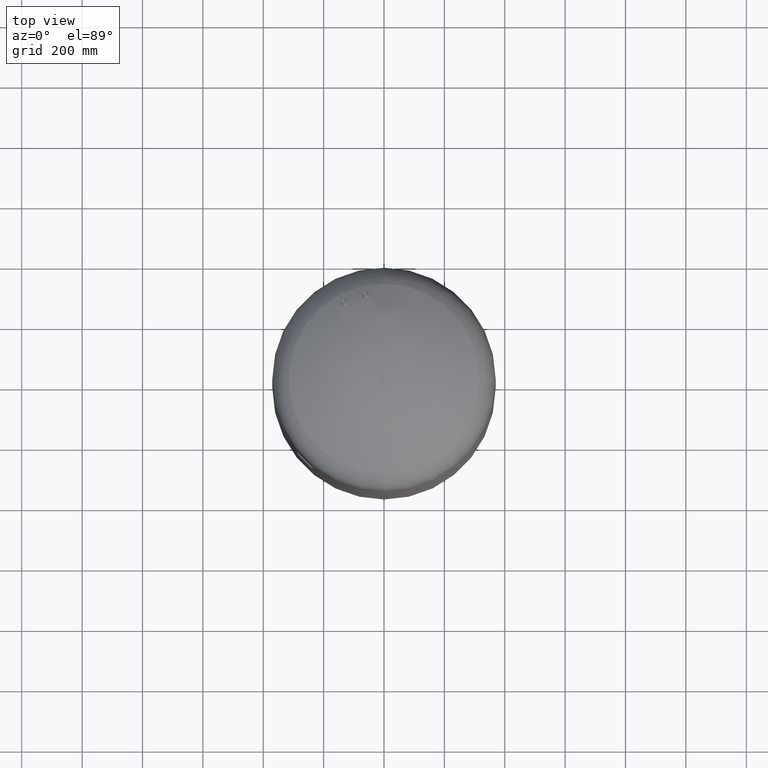
[diagram: clean part render]
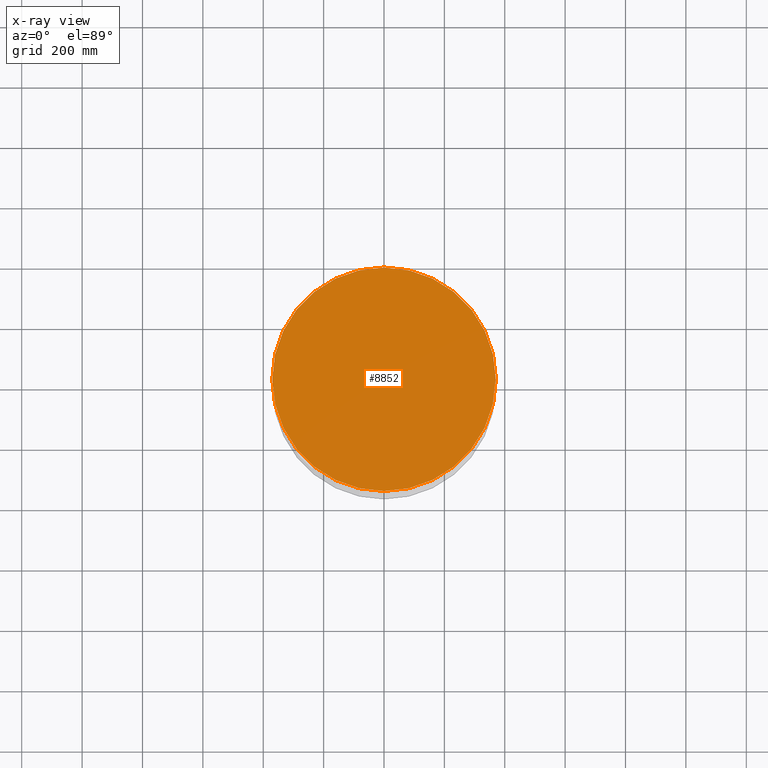
[diagram: x-ray — body ghosted, one internal face saturated and labeled with its STEP entity id]
A machine part, top view, then the same camera in x-ray: the body is ghosted and one INTERNAL B-rep face — a face not visible from any outside direction — is saturated and labeled: STEP entity #8852.
In plain terms, the highlighted planar face has unit normal (0, 0, 1).
Its self-contained STEP definition (entity closure, byte-faithful):
#8512=CARTESIAN_POINT('',(370.0,0.0,1961.0));
#8513=VERTEX_POINT('',#8512);
#8522=CARTESIAN_POINT('',(-369.999999999999770,-4.531044E-014,1961.0));
#8523=VERTEX_POINT('',#8522);
#8524=CARTESIAN_POINT('',(1.668796E-014,0.0,1961.0));
#8525=DIRECTION('',(0.0,0.0,1.0));
#8526=DIRECTION('',(1.0,0.0,0.0));
#8527=AXIS2_PLACEMENT_3D('',#8524,#8525,#8526);
#8528=CIRCLE('',#8527,370.0);
#8529=EDGE_CURVE('',#8523,#8513,#8528,.T.);
#8833=CARTESIAN_POINT('',(1.668796E-014,0.0,1961.0));
#8834=DIRECTION('',(0.0,0.0,1.0));
#8835=DIRECTION('',(1.0,0.0,0.0));
#8836=AXIS2_PLACEMENT_3D('',#8833,#8834,#8835);
#8837=CIRCLE('',#8836,370.0);
#8838=EDGE_CURVE('',#8513,#8523,#8837,.T.);
#8843=CARTESIAN_POINT('',(185.0,0.0,1961.0));
#8844=DIRECTION('',(0.0,0.0,1.0));
#8845=DIRECTION('',(1.0,0.0,0.0));
#8846=AXIS2_PLACEMENT_3D('',#8843,#8844,#8845);
#8847=PLANE('',#8846);
#8848=ORIENTED_EDGE('',*,*,#8838,.T.);
#8849=ORIENTED_EDGE('',*,*,#8529,.T.);
#8850=EDGE_LOOP('',(#8848,#8849));
#8851=FACE_OUTER_BOUND('',#8850,.T.);
#8852=ADVANCED_FACE('',(#8851),#8847,.T.);